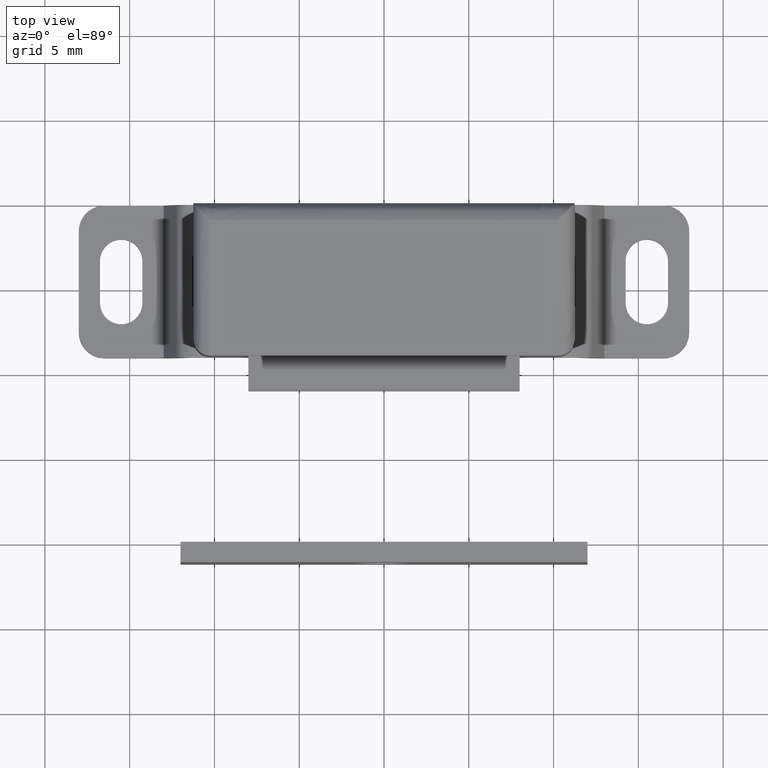
[diagram: clean part render]
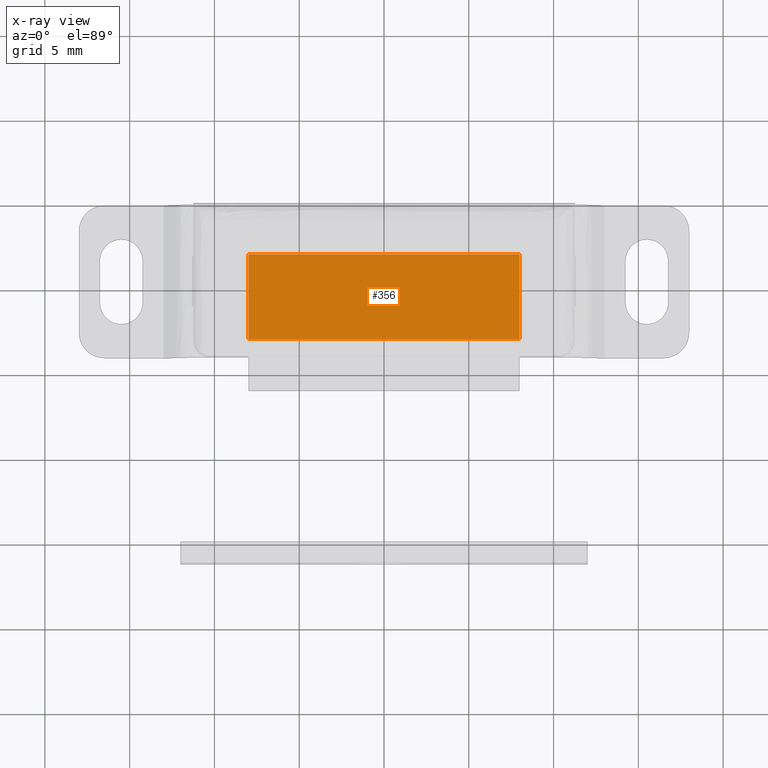
[diagram: x-ray — body ghosted, one internal face saturated and labeled with its STEP entity id]
A machine part, top view, then the same camera in x-ray: the body is ghosted and one INTERNAL B-rep face — a face not visible from any outside direction — is saturated and labeled: STEP entity #356.
In plain terms, the highlighted face is a freeform B-spline surface patch.
Its self-contained STEP definition (entity closure, byte-faithful):
#226=CARTESIAN_POINT('',(-8.0,-8.000000000000110,7.500000000000000));
#227=VERTEX_POINT('',#226);
#228=CARTESIAN_POINT('',(-8.0,-3.000000000000115,7.500000000000000));
#229=VERTEX_POINT('',#228);
#230=CARTESIAN_POINT('',(-8.0,-8.000000000000110,7.500000000000000));
#231=CARTESIAN_POINT('',(-8.0,-3.000000000000115,7.500000000000000));
#232=QUASI_UNIFORM_CURVE('',1,(#230,#231),.UNSPECIFIED.,.F.,.U.);
#233=EDGE_CURVE('',#227,#229,#232,.T.);
#262=CARTESIAN_POINT('',(8.0,-8.000000000000110,7.500000000000000));
#263=VERTEX_POINT('',#262);
#264=CARTESIAN_POINT('',(8.0,-3.000000000000115,7.500000000000000));
#265=VERTEX_POINT('',#264);
#266=CARTESIAN_POINT('',(8.0,-8.000000000000110,7.500000000000000));
#267=CARTESIAN_POINT('',(8.0,-3.000000000000115,7.500000000000000));
#268=QUASI_UNIFORM_CURVE('',1,(#266,#267),.UNSPECIFIED.,.F.,.U.);
#269=EDGE_CURVE('',#263,#265,#268,.T.);
#305=CARTESIAN_POINT('',(8.0,-8.000000000000110,7.500000000000000));
#306=CARTESIAN_POINT('',(-8.0,-8.000000000000110,7.500000000000000));
#307=QUASI_UNIFORM_CURVE('',1,(#305,#306),.UNSPECIFIED.,.F.,.U.);
#308=EDGE_CURVE('',#263,#227,#307,.T.);
#335=CARTESIAN_POINT('',(8.0,-3.000000000000115,7.500000000000000));
#336=CARTESIAN_POINT('',(-8.0,-3.000000000000115,7.500000000000000));
#337=QUASI_UNIFORM_CURVE('',1,(#335,#336),.UNSPECIFIED.,.F.,.U.);
#338=EDGE_CURVE('',#265,#229,#337,.T.);
#345=CARTESIAN_POINT('',(-8.799199968988896,-8.249749990309141,7.500000000000000));
#346=CARTESIAN_POINT('',(8.799200398142338,-8.249749990309141,7.500000000000000));
#347=CARTESIAN_POINT('',(-8.799199968988896,-2.750249875580634,7.500000000000000));
#348=CARTESIAN_POINT('',(8.799200398142338,-2.750249875580634,7.500000000000000));
#349=B_SPLINE_SURFACE_WITH_KNOTS('',1,1,((#345,#347),(#346,#348)),.UNSPECIFIED.,.F.,.F.,.U.,(2,2),(2,2),(0.0,17.598400367131230),(0.0,5.499500114728507),.UNSPECIFIED.);
#350=ORIENTED_EDGE('',*,*,#233,.F.);
#351=ORIENTED_EDGE('',*,*,#308,.F.);
#352=ORIENTED_EDGE('',*,*,#269,.T.);
#353=ORIENTED_EDGE('',*,*,#338,.T.);
#354=EDGE_LOOP('',(#350,#351,#352,#353));
#355=FACE_OUTER_BOUND('',#354,.T.);
#356=ADVANCED_FACE('',(#355),#349,.T.);